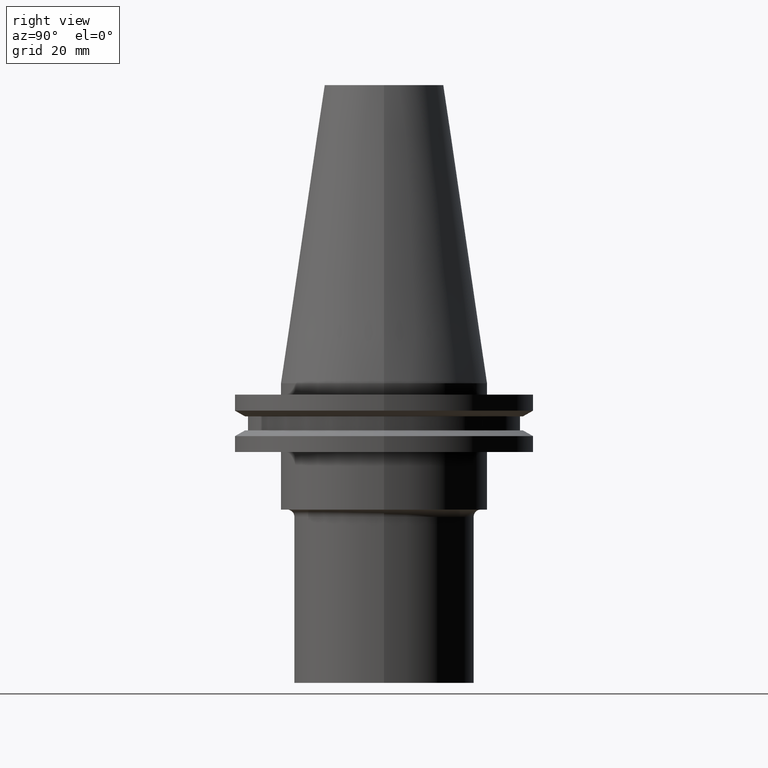
[diagram: clean part render]
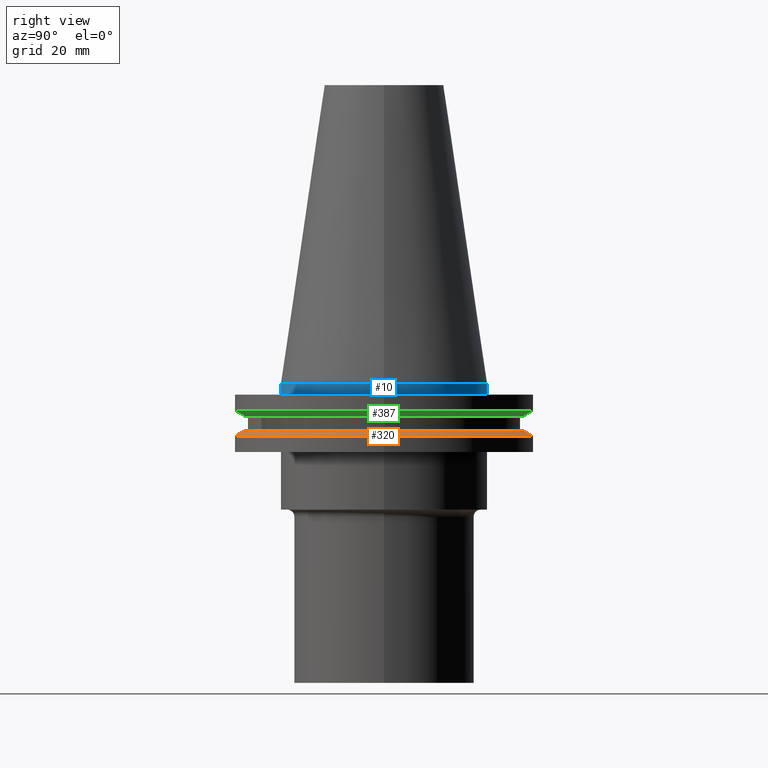
[diagram: same view with three faces highlighted in distinct colors, each labeled with its STEP entity id]
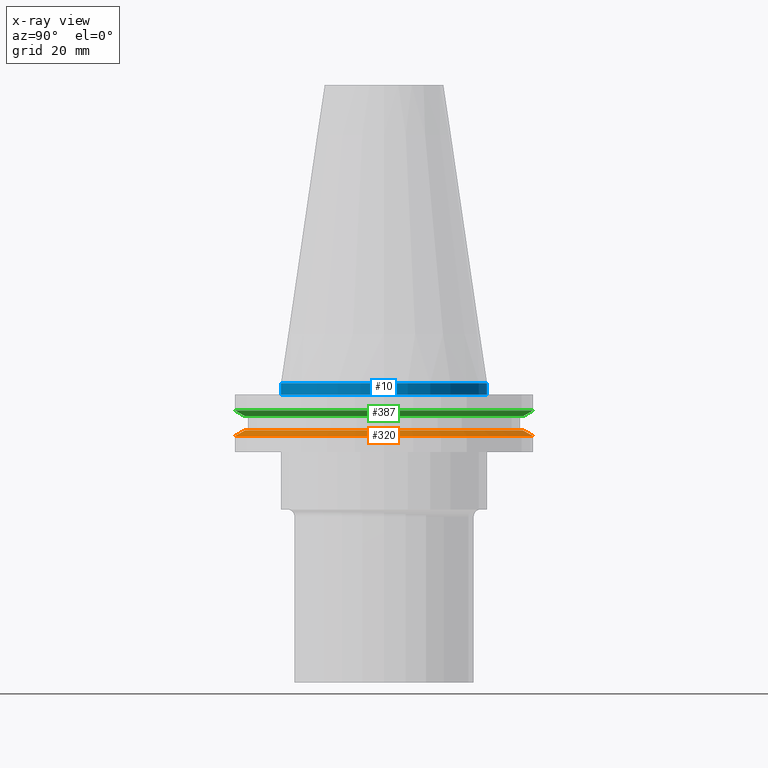
[diagram: x-ray of the same camera — body ghosted, the three highlighted faces saturated]
A machine part, right view with three faces highlighted in distinct colors.
The next image is the same camera in x-ray (body ghosted, the three faces saturated) — at least one of them is partly hidden behind the body in this view.
Their STEP definitions:

[orange] entity #320 — the highlighted conical surface has half-angle 60 deg.
#17 = VERTEX_POINT ( 'NONE', #337 ) ;
#85 = VERTEX_POINT ( 'NONE', #370 ) ;
#96 = EDGE_CURVE ( 'NONE', #17, #17, #323, .T. ) ;
#123 = EDGE_LOOP ( 'NONE', ( #246 ) ) ;
#125 = CONICAL_SURFACE ( 'NONE', #184, 41.27500000000000568, 1.047197551196589860 ) ;
#180 = DIRECTION ( 'NONE',  ( 0.000000000000000000, 0.000000000000000000, -1.000000000000000000 ) ) ;
#184 = AXIS2_PLACEMENT_3D ( 'NONE', #267, #180, #407 ) ;
#195 = AXIS2_PLACEMENT_3D ( 'NONE', #262, #290, #327 ) ;
#196 = DIRECTION ( 'NONE',  ( 1.000000000000000000, 0.000000000000000000, 0.000000000000000000 ) ) ;
#238 = EDGE_LOOP ( 'NONE', ( #343 ) ) ;
#246 = ORIENTED_EDGE ( 'NONE', *, *, #299, .T. ) ;
#252 = CARTESIAN_POINT ( 'NONE',  ( 0.000000000000000000, 0.000000000000000000, -13.05500000000001037 ) ) ;
#262 = CARTESIAN_POINT ( 'NONE',  ( 0.000000000000000000, 0.000000000000000000, -14.65472339340269414 ) ) ;
#267 = CARTESIAN_POINT ( 'NONE',  ( 0.000000000000000000, 0.000000000000000000, -14.65472339340269414 ) ) ;
#274 = FACE_OUTER_BOUND ( 'NONE', #123, .T. ) ;
#286 = CIRCLE ( 'NONE', #195, 41.27500000000000568 ) ;
#290 = DIRECTION ( 'NONE',  ( -0.000000000000000000, -0.000000000000000000, 1.000000000000000000 ) ) ;
#299 = EDGE_CURVE ( 'NONE', #85, #85, #286, .T. ) ;
#320 = ADVANCED_FACE ( 'NONE', ( #373, #274 ), #125, .T. ) ;
#323 = CIRCLE ( 'NONE', #390, 38.50419780457011854 ) ;
#327 = DIRECTION ( 'NONE',  ( 1.000000000000000000, 0.000000000000000000, 0.000000000000000000 ) ) ;
#337 = CARTESIAN_POINT ( 'NONE',  ( 38.50419780457011854, 0.000000000000000000, -13.05500000000001037 ) ) ;
#343 = ORIENTED_EDGE ( 'NONE', *, *, #96, .F. ) ;
#370 = CARTESIAN_POINT ( 'NONE',  ( 41.27500000000000568, 0.000000000000000000, -14.65472339340269414 ) ) ;
#373 = FACE_BOUND ( 'NONE', #238, .T. ) ;
#384 = DIRECTION ( 'NONE',  ( -0.000000000000000000, -0.000000000000000000, 1.000000000000000000 ) ) ;
#390 = AXIS2_PLACEMENT_3D ( 'NONE', #252, #384, #196 ) ;
#407 = DIRECTION ( 'NONE',  ( -1.000000000000000000, 0.000000000000000000, 0.000000000000000000 ) ) ;

[blue] entity #10 — the highlighted cylindrical surface (bore or boss wall) has radius 28.575 mm, axis along (-0, -0, 1).
#10 = ADVANCED_FACE ( 'NONE', ( #377, #321 ), #250, .T. ) ;
#45 = EDGE_CURVE ( 'NONE', #48, #48, #301, .T. ) ;
#48 = VERTEX_POINT ( 'NONE', #402 ) ;
#49 = EDGE_LOOP ( 'NONE', ( #278 ) ) ;
#57 = DIRECTION ( 'NONE',  ( -0.000000000000000000, -0.000000000000000000, 1.000000000000000000 ) ) ;
#97 = DIRECTION ( 'NONE',  ( 1.000000000000000000, 0.000000000000000000, 0.000000000000000000 ) ) ;
#127 = ORIENTED_EDGE ( 'NONE', *, *, #170, .F. ) ;
#150 = AXIS2_PLACEMENT_3D ( 'NONE', #188, #57, #97 ) ;
#170 = EDGE_CURVE ( 'NONE', #372, #372, #404, .T. ) ;
#188 = CARTESIAN_POINT ( 'NONE',  ( 0.000000000000000000, 0.000000000000000000, 82.54999999999999716 ) ) ;
#190 = AXIS2_PLACEMENT_3D ( 'NONE', #378, #385, #279 ) ;
#199 = CARTESIAN_POINT ( 'NONE',  ( 0.000000000000000000, 0.000000000000000000, 0.000000000000000000 ) ) ;
#220 = AXIS2_PLACEMENT_3D ( 'NONE', #199, #324, #264 ) ;
#250 = CYLINDRICAL_SURFACE ( 'NONE', #150, 28.57499999999999218 ) ;
#264 = DIRECTION ( 'NONE',  ( 1.000000000000000000, 0.000000000000000000, 0.000000000000000000 ) ) ;
#271 = EDGE_LOOP ( 'NONE', ( #127 ) ) ;
#278 = ORIENTED_EDGE ( 'NONE', *, *, #45, .T. ) ;
#279 = DIRECTION ( 'NONE',  ( 1.000000000000000000, 0.000000000000000000, 0.000000000000000000 ) ) ;
#301 = CIRCLE ( 'NONE', #190, 28.57499999999999218 ) ;
#305 = CARTESIAN_POINT ( 'NONE',  ( 28.57499999999999218, 0.000000000000000000, 0.000000000000000000 ) ) ;
#321 = FACE_OUTER_BOUND ( 'NONE', #49, .T. ) ;
#324 = DIRECTION ( 'NONE',  ( -0.000000000000000000, -0.000000000000000000, 1.000000000000000000 ) ) ;
#372 = VERTEX_POINT ( 'NONE', #305 ) ;
#377 = FACE_OUTER_BOUND ( 'NONE', #271, .T. ) ;
#378 = CARTESIAN_POINT ( 'NONE',  ( 0.000000000000000000, 0.000000000000000000, -3.174999999999997158 ) ) ;
#385 = DIRECTION ( 'NONE',  ( -0.000000000000000000, -0.000000000000000000, 1.000000000000000000 ) ) ;
#402 = CARTESIAN_POINT ( 'NONE',  ( 28.57499999999999218, 0.000000000000000000, -3.174999999999997158 ) ) ;
#404 = CIRCLE ( 'NONE', #220, 28.57499999999999218 ) ;

[green] entity #387 — the highlighted conical surface has half-angle 60 deg.
#18 = EDGE_CURVE ( 'NONE', #405, #405, #141, .T. ) ;
#25 = CARTESIAN_POINT ( 'NONE',  ( 41.27500000000000568, 0.000000000000000000, -7.605276606597321631 ) ) ;
#54 = CARTESIAN_POINT ( 'NONE',  ( 38.50419780457011854, 0.000000000000000000, -9.205000000000005400 ) ) ;
#55 = ORIENTED_EDGE ( 'NONE', *, *, #18, .T. ) ;
#77 = DIRECTION ( 'NONE',  ( -0.000000000000000000, -0.000000000000000000, 1.000000000000000000 ) ) ;
#80 = EDGE_LOOP ( 'NONE', ( #368 ) ) ;
#84 = EDGE_LOOP ( 'NONE', ( #55 ) ) ;
#87 = CARTESIAN_POINT ( 'NONE',  ( 0.000000000000000000, 0.000000000000000000, -7.605276606597321631 ) ) ;
#119 = FACE_BOUND ( 'NONE', #84, .T. ) ;
#136 = AXIS2_PLACEMENT_3D ( 'NONE', #175, #245, #206 ) ;
#141 = CIRCLE ( 'NONE', #376, 38.50419780457011854 ) ;
#143 = FACE_OUTER_BOUND ( 'NONE', #80, .T. ) ;
#175 = CARTESIAN_POINT ( 'NONE',  ( 0.000000000000000000, 0.000000000000000000, -9.205000000000005400 ) ) ;
#206 = DIRECTION ( 'NONE',  ( 1.000000000000000000, 0.000000000000000000, 0.000000000000000000 ) ) ;
#226 = AXIS2_PLACEMENT_3D ( 'NONE', #87, #77, #400 ) ;
#245 = DIRECTION ( 'NONE',  ( -0.000000000000000000, -0.000000000000000000, 1.000000000000000000 ) ) ;
#280 = CONICAL_SURFACE ( 'NONE', #136, 38.50419780457011854, 1.047197551196589860 ) ;
#285 = CARTESIAN_POINT ( 'NONE',  ( 0.000000000000000000, 0.000000000000000000, -9.205000000000005400 ) ) ;
#294 = CIRCLE ( 'NONE', #226, 41.27500000000000568 ) ;
#311 = VERTEX_POINT ( 'NONE', #25 ) ;
#315 = DIRECTION ( 'NONE',  ( -0.000000000000000000, -0.000000000000000000, 1.000000000000000000 ) ) ;
#356 = EDGE_CURVE ( 'NONE', #311, #311, #294, .T. ) ;
#368 = ORIENTED_EDGE ( 'NONE', *, *, #356, .F. ) ;
#376 = AXIS2_PLACEMENT_3D ( 'NONE', #285, #315, #415 ) ;
#387 = ADVANCED_FACE ( 'NONE', ( #143, #119 ), #280, .T. ) ;
#400 = DIRECTION ( 'NONE',  ( 1.000000000000000000, 0.000000000000000000, 0.000000000000000000 ) ) ;
#405 = VERTEX_POINT ( 'NONE', #54 ) ;
#415 = DIRECTION ( 'NONE',  ( 1.000000000000000000, 0.000000000000000000, 0.000000000000000000 ) ) ;